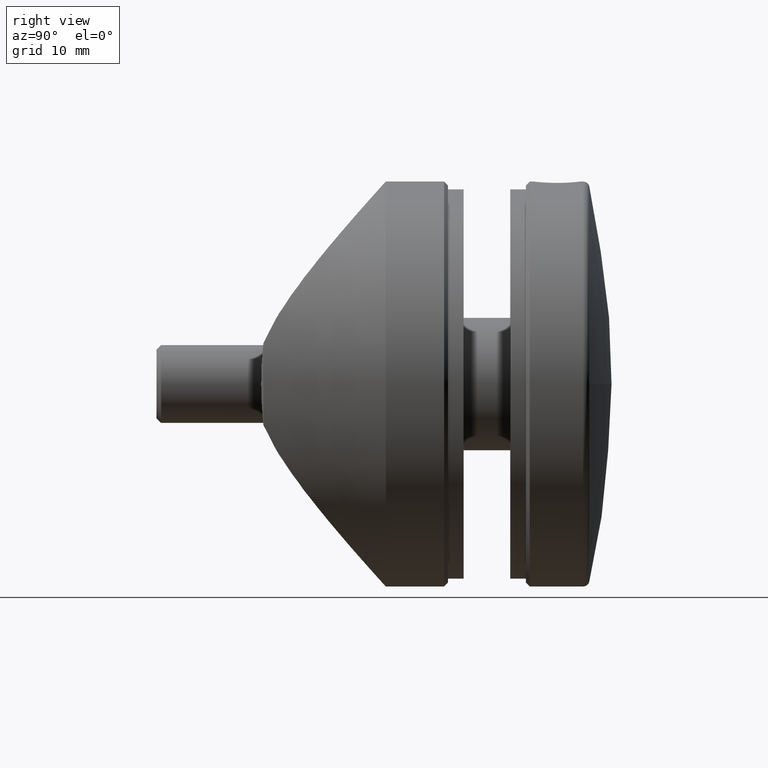
[diagram: clean part render]
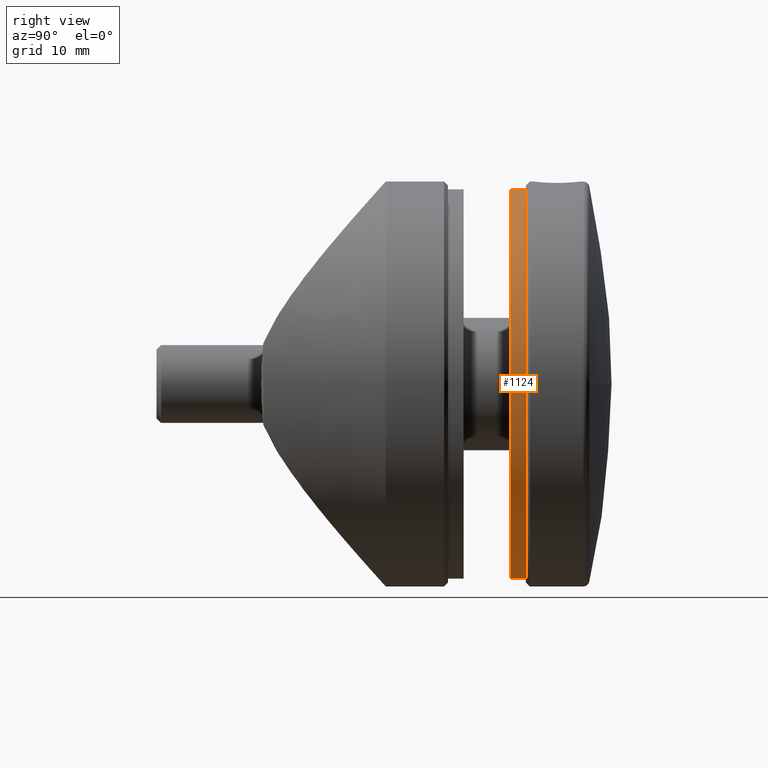
[diagram: same view with one face highlighted and labeled with its STEP entity id]
A machine part, right view. The second image highlights one B-rep face of the part: STEP entity #1124.
In plain terms, the highlighted cylindrical surface (partial cylindrical patch) has radius 25 mm, axis along (0, -1, 0).
Its self-contained STEP definition (entity closure, byte-faithful):
#280 = EDGE_CURVE ( 'NONE', #3313, #12229, #3283, .T. ) ;
#792 = CARTESIAN_POINT ( 'NONE',  ( 5.457486406938542366E-16, 4.000000000000000000, 0.000000000000000000 ) ) ;
#1079 = CARTESIAN_POINT ( 'NONE',  ( 5.457486406938542366E-16, -2.000000000000000000, 25.00000000000000000 ) ) ;
#1124 = ADVANCED_FACE ( 'NONE', ( #12807 ), #2891, .T. ) ;
#2250 = DIRECTION ( 'NONE',  ( 0.000000000000000000, 0.000000000000000000, 1.000000000000000000 ) ) ;
#2309 = EDGE_CURVE ( 'NONE', #6255, #7717, #2372, .T. ) ;
#2372 = LINE ( 'NONE', #3526, #7264 ) ;
#2382 = CARTESIAN_POINT ( 'NONE',  ( 3.607365638562237181E-15, -2.000000000000000000, -25.00000000000000000 ) ) ;
#2891 = CYLINDRICAL_SURFACE ( 'NONE', #17208, 25.00000000000000000 ) ;
#2973 = ORIENTED_EDGE ( 'NONE', *, *, #10115, .T. ) ;
#3283 = LINE ( 'NONE', #3345, #12976 ) ;
#3313 = VERTEX_POINT ( 'NONE', #13792 ) ;
#3345 = CARTESIAN_POINT ( 'NONE',  ( 5.457486406938542366E-16, 4.000000000000000000, 25.00000000000000000 ) ) ;
#3526 = CARTESIAN_POINT ( 'NONE',  ( 3.607365638562237181E-15, 4.000000000000000000, -25.00000000000000000 ) ) ;
#4579 = DIRECTION ( 'NONE',  ( 0.000000000000000000, 0.000000000000000000, 1.000000000000000000 ) ) ;
#6255 = VERTEX_POINT ( 'NONE', #11712 ) ;
#7264 = VECTOR ( 'NONE', #13812, 1000.000000000000000 ) ;
#7717 = VERTEX_POINT ( 'NONE', #2382 ) ;
#8902 = EDGE_CURVE ( 'NONE', #7717, #12229, #12725, .T. ) ;
#8903 = DIRECTION ( 'NONE',  ( 0.000000000000000000, 0.000000000000000000, 1.000000000000000000 ) ) ;
#9165 = ORIENTED_EDGE ( 'NONE', *, *, #280, .T. ) ;
#10115 = EDGE_CURVE ( 'NONE', #6255, #3313, #17612, .T. ) ;
#10462 = DIRECTION ( 'NONE',  ( -0.000000000000000000, 1.000000000000000000, -0.000000000000000000 ) ) ;
#10951 = AXIS2_PLACEMENT_3D ( 'NONE', #17777, #10462, #4579 ) ;
#11119 = DIRECTION ( 'NONE',  ( -0.000000000000000000, 1.000000000000000000, -0.000000000000000000 ) ) ;
#11665 = DIRECTION ( 'NONE',  ( -0.000000000000000000, 1.000000000000000000, -0.000000000000000000 ) ) ;
#11712 = CARTESIAN_POINT ( 'NONE',  ( 3.607365638562237181E-15, -4.000000000000000000, -25.00000000000000000 ) ) ;
#11837 = AXIS2_PLACEMENT_3D ( 'NONE', #13133, #11665, #8903 ) ;
#12229 = VERTEX_POINT ( 'NONE', #1079 ) ;
#12725 = CIRCLE ( 'NONE', #10951, 25.00000000000000000 ) ;
#12807 = FACE_OUTER_BOUND ( 'NONE', #14980, .T. ) ;
#12976 = VECTOR ( 'NONE', #18171, 1000.000000000000000 ) ;
#13133 = CARTESIAN_POINT ( 'NONE',  ( 5.457486406938542366E-16, -4.000000000000000000, 0.000000000000000000 ) ) ;
#13792 = CARTESIAN_POINT ( 'NONE',  ( 5.457486406938542366E-16, -4.000000000000000000, 25.00000000000000000 ) ) ;
#13812 = DIRECTION ( 'NONE',  ( -0.000000000000000000, 1.000000000000000000, -0.000000000000000000 ) ) ;
#14535 = ORIENTED_EDGE ( 'NONE', *, *, #8902, .F. ) ;
#14980 = EDGE_LOOP ( 'NONE', ( #16751, #2973, #9165, #14535 ) ) ;
#16751 = ORIENTED_EDGE ( 'NONE', *, *, #2309, .F. ) ;
#17208 = AXIS2_PLACEMENT_3D ( 'NONE', #792, #11119, #2250 ) ;
#17612 = CIRCLE ( 'NONE', #11837, 25.00000000000000000 ) ;
#17777 = CARTESIAN_POINT ( 'NONE',  ( 5.457486406938542366E-16, -2.000000000000000000, 0.000000000000000000 ) ) ;
#18171 = DIRECTION ( 'NONE',  ( -0.000000000000000000, 1.000000000000000000, -0.000000000000000000 ) ) ;